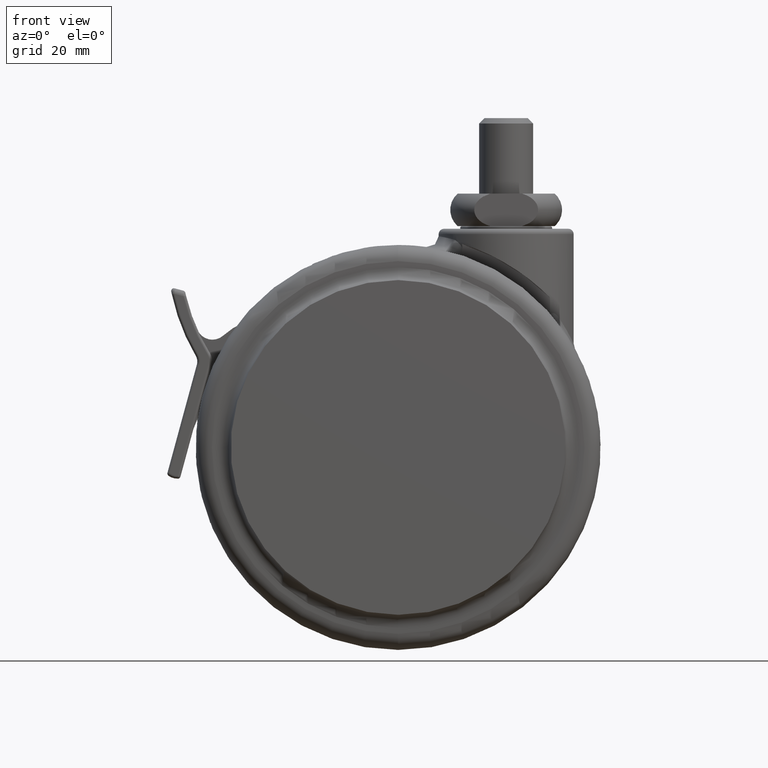
[diagram: clean part render]
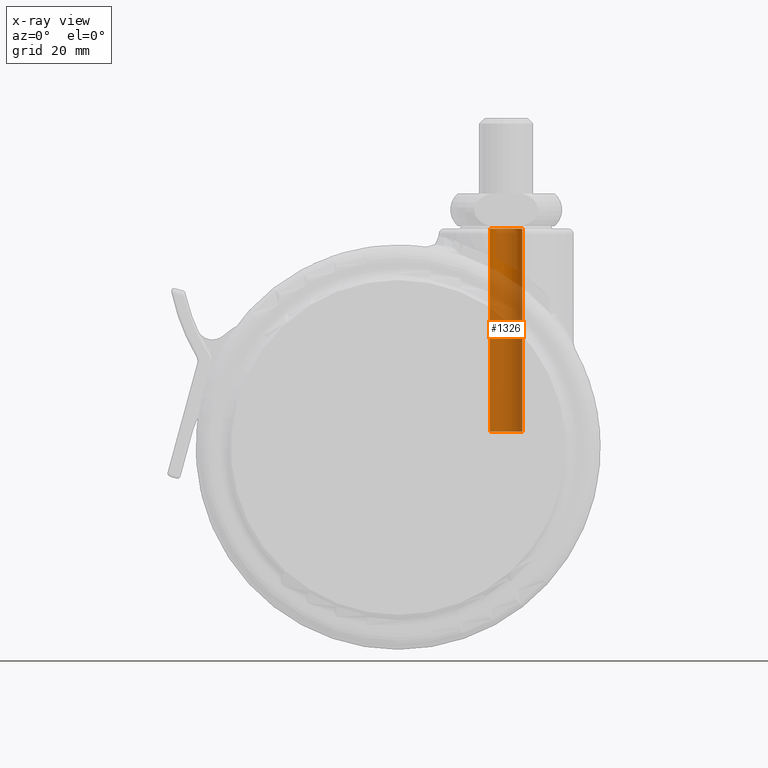
[diagram: x-ray — body ghosted, one internal face saturated and labeled with its STEP entity id]
A machine part, front view, then the same camera in x-ray: the body is ghosted and one INTERNAL B-rep face — a face not visible from any outside direction — is saturated and labeled: STEP entity #1326.
In plain terms, the highlighted cylindrical surface (edge-blend (fillet) strip) has radius 3 mm, axis along (0, 0, 1).
Its self-contained STEP definition (entity closure, byte-faithful):
#256 = EDGE_CURVE ( 'NONE', #8725, #2173, #2394, .T. ) ;
#474 = DIRECTION ( 'NONE',  ( 0.0000000000000000000, 0.0000000000000000000, 1.000000000000000000 ) ) ;
#933 = DIRECTION ( 'NONE',  ( 0.0000000000000000000, 0.0000000000000000000, 1.000000000000000000 ) ) ;
#986 = CIRCLE ( 'NONE', #1690, 3.000000000000000000 ) ;
#1326 = ADVANCED_FACE ( 'NONE', ( #1955 ), #3533, .F. ) ;
#1506 = CIRCLE ( 'NONE', #4492, 3.000000000000000000 ) ;
#1624 = CARTESIAN_POINT ( 'NONE',  ( 3.000000000000000000, 2.842170943040399500E-014, -1000.000000000000000 ) ) ;
#1690 = AXIS2_PLACEMENT_3D ( 'NONE', #3702, #8400, #4402 ) ;
#1729 = EDGE_CURVE ( 'NONE', #6222, #8725, #986, .T. ) ;
#1955 = FACE_OUTER_BOUND ( 'NONE', #5733, .T. ) ;
#2173 = VERTEX_POINT ( 'NONE', #3808 ) ;
#2394 = LINE ( 'NONE', #8180, #3997 ) ;
#2532 = CARTESIAN_POINT ( 'NONE',  ( 0.0000000000000000000, 2.842170943040399500E-014, -1000.000000000000000 ) ) ;
#2572 = DIRECTION ( 'NONE',  ( 0.0000000000000000000, 0.0000000000000000000, 1.000000000000000000 ) ) ;
#2580 = EDGE_CURVE ( 'NONE', #7116, #2173, #1506, .T. ) ;
#2797 = DIRECTION ( 'NONE',  ( -0.0000000000000000000, -0.0000000000000000000, 1.000000000000000000 ) ) ;
#3239 = CARTESIAN_POINT ( 'NONE',  ( 3.000000000000000000, 2.842170943040399500E-014, -37.61339081420354800 ) ) ;
#3356 = DIRECTION ( 'NONE',  ( 1.000000000000000000, 0.0000000000000000000, 0.0000000000000000000 ) ) ;
#3533 = CYLINDRICAL_SURFACE ( 'NONE', #5209, 3.000000000000000000 ) ;
#3702 = CARTESIAN_POINT ( 'NONE',  ( 0.0000000000000000000, 2.842170943040399500E-014, -37.61339081420354800 ) ) ;
#3808 = CARTESIAN_POINT ( 'NONE',  ( -3.000000000000000000, 2.878910347014820000E-014, 0.0000000000000000000 ) ) ;
#3931 = EDGE_CURVE ( 'NONE', #6222, #7116, #8122, .T. ) ;
#3997 = VECTOR ( 'NONE', #2572, 1000.000000000000000 ) ;
#4100 = ORIENTED_EDGE ( 'NONE', *, *, #3931, .T. ) ;
#4114 = ORIENTED_EDGE ( 'NONE', *, *, #1729, .F. ) ;
#4402 = DIRECTION ( 'NONE',  ( -1.000000000000000000, 0.0000000000000000000, 0.0000000000000000000 ) ) ;
#4492 = AXIS2_PLACEMENT_3D ( 'NONE', #6838, #2797, #7514 ) ;
#4497 = CARTESIAN_POINT ( 'NONE',  ( 3.000000000000000000, 2.842170943040399500E-014, 0.0000000000000000000 ) ) ;
#5209 = AXIS2_PLACEMENT_3D ( 'NONE', #2532, #474, #3356 ) ;
#5475 = ORIENTED_EDGE ( 'NONE', *, *, #256, .F. ) ;
#5733 = EDGE_LOOP ( 'NONE', ( #5475, #4114, #4100, #5894 ) ) ;
#5894 = ORIENTED_EDGE ( 'NONE', *, *, #2580, .T. ) ;
#6222 = VERTEX_POINT ( 'NONE', #3239 ) ;
#6340 = VECTOR ( 'NONE', #933, 1000.000000000000000 ) ;
#6348 = CARTESIAN_POINT ( 'NONE',  ( -3.000000000000000000, 2.878910347014820000E-014, -37.61339081420354800 ) ) ;
#6838 = CARTESIAN_POINT ( 'NONE',  ( 0.0000000000000000000, 2.842170943040399500E-014, 0.0000000000000000000 ) ) ;
#7116 = VERTEX_POINT ( 'NONE', #4497 ) ;
#7514 = DIRECTION ( 'NONE',  ( -1.000000000000000000, 0.0000000000000000000, 0.0000000000000000000 ) ) ;
#8122 = LINE ( 'NONE', #1624, #6340 ) ;
#8180 = CARTESIAN_POINT ( 'NONE',  ( -3.000000000000000000, 2.878910347014820000E-014, -1000.000000000000000 ) ) ;
#8400 = DIRECTION ( 'NONE',  ( -0.0000000000000000000, -0.0000000000000000000, 1.000000000000000000 ) ) ;
#8725 = VERTEX_POINT ( 'NONE', #6348 ) ;